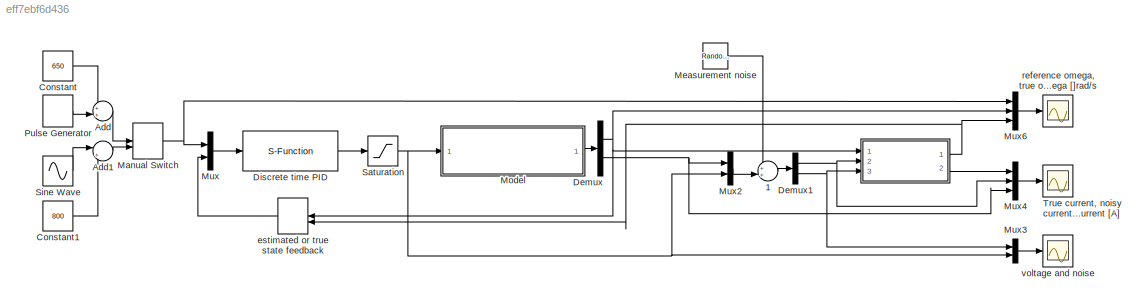
MODEL slx_eff7ebf6d436
KIND model
CONFIG AbsTol = auto
CONFIG FixedStep = auto
CONFIG MaxStep = auto
CONFIG MinStep = auto
CONFIG RelTol = 1e-3
CONFIG SampleTimeConstraint = Unconstrained
CONFIG Solver = VariableStepAuto
CONFIG SolverMode = Auto
CONFIG SolverName = VariableStepAuto
CONFIG StartTime = 0.0
CONFIG StopTime = 20
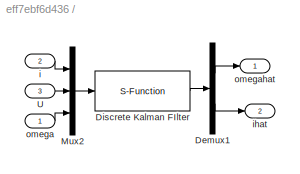
BLOCK [SubSystem]       
  Ports = [3, 2]
  RequestExecContextInheritance = off
  Variant = off
BLOCK [Demux]       /Demux1
  DisplayOption = bar
  Outputs = 2
  Ports = [1, 2]
BLOCK [S-Function]       /Discrete Kalman FIlter
  EnableBusSupport = off
  FunctionName = sfunc_KF_rotor_d
  Parameters = FILTERparam
  Ports = [1, 1]
  SFunctionDeploymentMode = off
BLOCK [Mux]       /Mux2
  DisplayOption = bar
  Inputs = 3
  Ports = [3, 1]
BLOCK [Inport]       /U
  IconDisplay = Port number
  Port = 3
BLOCK [Inport]       /i
  IconDisplay = Port number
  Port = 2
BLOCK [Outport]       /ihat
  IconDisplay = Port number
  Port = 2
BLOCK [Inport]       /omega
  IconDisplay = Port number
BLOCK [Outport]       /omegahat
  IconDisplay = Port number
BLOCK [Sum]     1
  IconShape = round
  InputSameDT = off
  Inputs = ++|
  OutDataTypeStr = Inherit: Inherit via internal rule
  Ports = [2, 1]
  SaturateOnIntegerOverflow = off
BLOCK [Scope]  reference omega, true omega and estimated omega []rad//s
  Ports = [1]
  ScopeSpecificationString = Simulink.scopes.TimeScopeBlockCfg('CurrentConfiguration', extmgr.ConfigurationSet(extmgr.Configuration('Core','General UI',true),extmgr.Configuration('Core','Source UI',true),extmgr.Configuration('Sources','WiredSimulink',true,'DataLoggingVariableName','ScopeData2'),extmgr.Configuration('Visuals','Time Domain',true,'SerializedDisplays',{struct('MinYLimReal','-158.70333','MaxYLimReal','1409.75339',...<+1440ch>
BLOCK [Sum] Add
  IconShape = round
  InputSameDT = off
  Inputs = ++|
  OutDataTypeStr = Inherit: Inherit via internal rule
  Ports = [2, 1]
  SaturateOnIntegerOverflow = off
BLOCK [Sum] Add1
  IconShape = round
  InputSameDT = off
  Inputs = |++
  OutDataTypeStr = Inherit: Inherit via internal rule
  Ports = [2, 1]
  SaturateOnIntegerOverflow = off
BLOCK [Constant] Constant
  Value = 650
BLOCK [Constant] Constant1
  Value = 800
BLOCK [Demux] Demux
  DisplayOption = bar
  Outputs = 2
  Ports = [1, 2]
BLOCK [Demux] Demux1
  DisplayOption = bar
  Outputs = 2
  Ports = [1, 2]
BLOCK [S-Function] Discrete time PID
  EnableBusSupport = off
  FunctionName = PID_d_sfunc
  Parameters = PIDparam
  Ports = [1, 1]
  SFunctionDeploymentMode = off
BLOCK [ManualSwitch] Manual Switch
BLOCK [RandomNumber] Measurement noise
  Mean = [0,0]
  Seed = 1
  Variance = [0.001, 0.001]
BLOCK [ModelReference] Model
  ModelNameDialog = rotor_model_c.slx
  ModelReferenceVersion = 1.28
  Ports = [1, 1]
  Variant = off
BLOCK [Mux] Mux
  DisplayOption = bar
  Inputs = 2
  Ports = [2, 1]
BLOCK [Mux] Mux2
  DisplayOption = bar
  Inputs = 2
  Ports = [2, 1]
BLOCK [Mux] Mux3
  DisplayOption = bar
  Inputs = 2
  Ports = [2, 1]
BLOCK [Mux] Mux4
  DisplayOption = bar
  Inputs = 3
  Ports = [3, 1]
BLOCK [Mux] Mux6
  DisplayOption = bar
  Inputs = 3
  Ports = [3, 1]
BLOCK [DiscretePulseGenerator] Pulse Generator
  Amplitude = 600
  Period = 4
  Ports = [0, 1]
  PulseType = Time based
  PulseWidth = 50
BLOCK [Saturate] Saturation
  InputPortMap = u0
  LowerLimit = 0
  Ports = [1, 1]
  UpperLimit = 4.3
BLOCK [Sin] Sine Wave
  Amplitude = 300
  Frequency = 0.5
  Ports = [0, 1]
  SampleTime = 0
BLOCK [Scope] True current, noisy current and estimated current [A]  
  Ports = [1]
  ScopeSpecificationString = Simulink.scopes.TimeScopeBlockCfg('CurrentConfiguration', extmgr.ConfigurationSet(extmgr.Configuration('Core','General UI',true),extmgr.Configuration('Core','Source UI',true),extmgr.Configuration('Sources','WiredSimulink',true,'DataLoggingVariableName','ScopeData2'),extmgr.Configuration('Visuals','Time Domain',true,'SerializedDisplays',{struct('MinYLimReal','-0.10798','MaxYLimReal','0.67472','YLab...<+1388ch>
BLOCK [ManualSwitch] estimated or true state feedback
BLOCK [Scope] voltage and noise
  Ports = [1]
  ScopeSpecificationString = Simulink.scopes.TimeScopeBlockCfg('CurrentConfiguration', extmgr.ConfigurationSet(extmgr.Configuration('Core','General UI',true),extmgr.Configuration('Core','Source UI',true),extmgr.Configuration('Sources','WiredSimulink',true,'DataLoggingVariableName','ScopeData1'),extmgr.Configuration('Visuals','Time Domain',true,'SerializedDisplays',{struct('MinYLimReal','-0.25493','MaxYLimReal','2.2104','YLabe...<+1376ch>
LINE       /Demux1:1 ->       /omegahat:1
LINE       /Demux1:2 ->       /ihat:1
LINE       /Discrete Kalman FIlter:1 ->       /Demux1:1
LINE       /Mux2:1 ->       /Discrete Kalman FIlter:1
LINE       /U:1 ->       /Mux2:2
LINE       /i:1 ->       /Mux2:1
LINE       /omega:1 ->       /Mux2:3
NET       :1 -> Mux6:3, estimated or true state feedback:2
LINE       :2 -> Mux4:1
LINE     1:1 -> Demux1:1
LINE Add1:1 -> Manual Switch:2
LINE Add:1 -> Manual Switch:1
LINE Constant1:1 -> Add1:2
LINE Constant:1 -> Add:1
NET Demux1:1 ->       :2, Mux4:2
NET Demux1:2 ->       :3, Mux3:1
NET Demux:1 ->       :1, Mux6:2, estimated or true state feedback:1
NET Demux:2 -> Mux2:1, Mux4:3
LINE Discrete time PID:1 -> Saturation:1
NET Manual Switch:1 -> Mux6:1, Mux:1
LINE Measurement noise:1 ->     1:1
LINE Model:1 -> Demux:1
LINE Mux2:1 ->     1:2
LINE Mux3:1 -> voltage and noise:1
LINE Mux4:1 -> True current, noisy current and estimated current [A]  :1
LINE Mux6:1 ->  reference omega, true omega and estimated omega []rad//s:1
LINE Mux:1 -> Discrete time PID:1
LINE Pulse Generator:1 -> Add:2
NET Saturation:1 -> Model:1, Mux2:2, Mux3:2
LINE Sine Wave:1 -> Add1:1
LINE estimated or true state feedback:1 -> Mux:2
note: NET lines group one-source signal fan-out (src -> all destinations, sorted); 1:1 wires keep LINE
